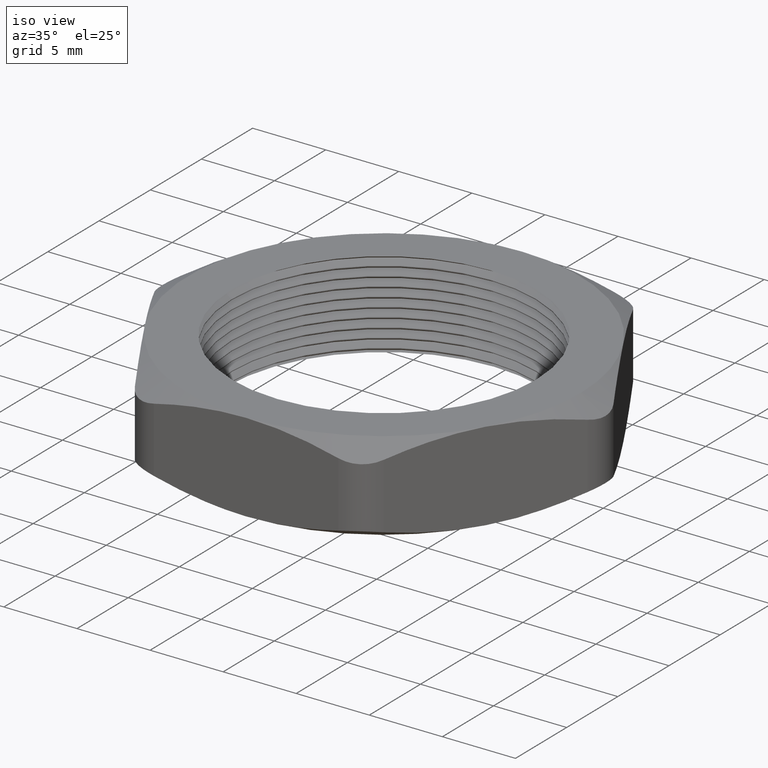
[diagram: clean part render]
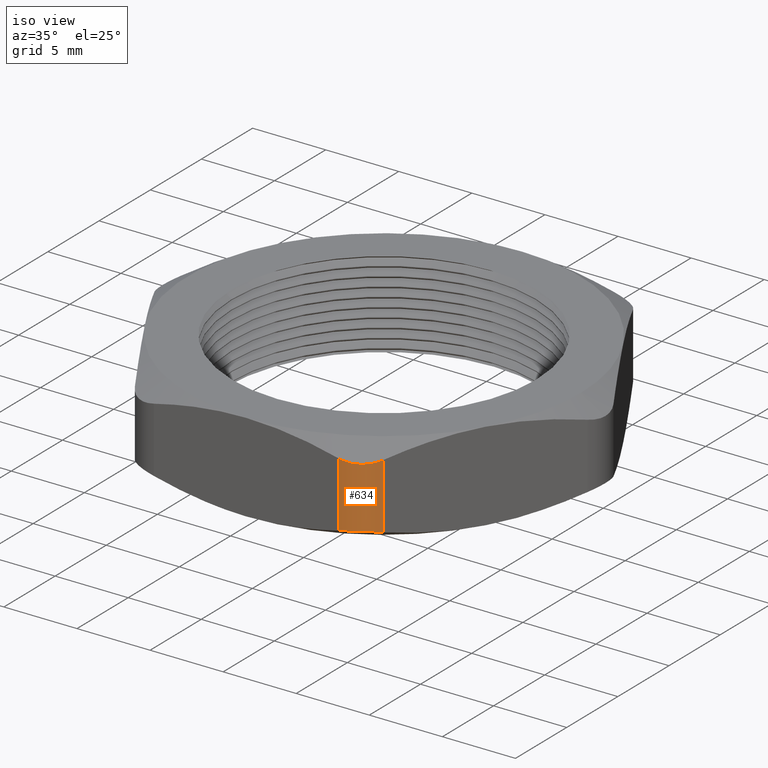
[diagram: same view with one face highlighted and labeled with its STEP entity id]
A machine part, iso view. The second image highlights one B-rep face of the part: STEP entity #634.
In plain terms, the highlighted cylindrical surface (partial cylindrical patch) has radius 2.54 mm, axis along (0, 0, -1).
Its self-contained STEP definition (entity closure, byte-faithful):
#456 = VERTEX_POINT ( 'NONE', #1757 ) ;
#458 = EDGE_CURVE ( 'NONE', #456, #459, #1756, .T. ) ;
#459 = VERTEX_POINT ( 'NONE', #1746 ) ;
#466 = EDGE_CURVE ( 'NONE', #471, #473, #1786, .T. ) ;
#471 = VERTEX_POINT ( 'NONE', #1772 ) ;
#473 = VERTEX_POINT ( 'NONE', #1771 ) ;
#537 = EDGE_CURVE ( 'NONE', #473, #456, #1903, .T. ) ;
#594 = EDGE_CURVE ( 'NONE', #459, #471, #2074, .T. ) ;
#613 = ORIENTED_EDGE ( 'NONE', *, *, #466, .F. ) ;
#614 = ORIENTED_EDGE ( 'NONE', *, *, #594, .F. ) ;
#615 = ORIENTED_EDGE ( 'NONE', *, *, #458, .F. ) ;
#634 = ADVANCED_FACE ( 'NONE', ( #2088 ), #2087, .T. ) ;
#635 = EDGE_LOOP ( 'NONE', ( #636, #613, #614, #615 ) ) ;
#636 = ORIENTED_EDGE ( 'NONE', *, *, #537, .F. ) ;
#1437 = CARTESIAN_POINT ( 'NONE',  ( 0.2654429589481258100, -0.5289011185036921500, 0.2043704327233682700 ) ) ;
#1444 = CARTESIAN_POINT ( 'NONE',  ( 0.3129031630985334400, -0.5067923633483560900, 0.2021571432969642100 ) ) ;
#1445 = CARTESIAN_POINT ( 'NONE',  ( 0.3057962390927460000, -0.5122600364598975900, 0.2015905404625066300 ) ) ;
#1448 = CARTESIAN_POINT ( 'NONE',  ( 0.2905843605529146400, -0.5210261620504398300, 0.2015973893732988500 ) ) ;
#1449 = CARTESIAN_POINT ( 'NONE',  ( 0.2823689258964634500, -0.5244102078064882800, 0.2021617336542236300 ) ) ;
#1685 = CARTESIAN_POINT ( 'NONE',  ( 0.3348631561299829600, -0.4799999999999998700, 0.2080936187378570100 ) ) ;
#1686 = CARTESIAN_POINT ( 'NONE',  ( 0.3305463269922462300, -0.4874769673941543000, 0.2059792017689854900 ) ) ;
#1688 = CARTESIAN_POINT ( 'NONE',  ( 0.3251960974889904200, -0.4944721462800847300, 0.2043413060484506900 ) ) ;
#1746 = CARTESIAN_POINT ( 'NONE',  ( 0.3348631561300047800, -0.4799999999999621200, 0.03190638126213233400 ) ) ;
#1747 = DIRECTION ( 'NONE',  ( 0.0000000000000000000, 0.0000000000000000000, -1.000000000000000000 ) ) ;
#1748 = VECTOR ( 'NONE', #1747, 39.37007874015748100 ) ;
#1749 = CARTESIAN_POINT ( 'NONE',  ( 0.3348631561299829600, -0.4799999999999998700, 0.2399999999999999900 ) ) ;
#1756 = LINE ( 'NONE', #1749, #1748 ) ;
#1757 = CARTESIAN_POINT ( 'NONE',  ( 0.3348631561299829600, -0.4799999999999998700, 0.2080936187378570100 ) ) ;
#1771 = CARTESIAN_POINT ( 'NONE',  ( 0.2482606157515391000, -0.5299999999999998000, 0.2080936187378570100 ) ) ;
#1772 = CARTESIAN_POINT ( 'NONE',  ( 0.2482606157515390400, -0.5299999999999998000, 0.03190638126214297800 ) ) ;
#1777 = DIRECTION ( 'NONE',  ( 0.0000000000000000000, 0.0000000000000000000, 1.000000000000000000 ) ) ;
#1778 = VECTOR ( 'NONE', #1777, 39.37007874015748100 ) ;
#1785 = CARTESIAN_POINT ( 'NONE',  ( 0.2482606157515391300, -0.5299999999999998000, 0.2399999999999999900 ) ) ;
#1786 = LINE ( 'NONE', #1785, #1778 ) ;
#1898 = CARTESIAN_POINT ( 'NONE',  ( 0.2568920763089042000, -0.5299999999999996900, 0.2059797399988198600 ) ) ;
#1899 = CARTESIAN_POINT ( 'NONE',  ( 0.2482606157515391000, -0.5299999999999998000, 0.2080936187378570100 ) ) ;
#1903 = B_SPLINE_CURVE_WITH_KNOTS ( 'NONE', 3,
 ( #1899, #1898, #1437, #1449, #1448, #1445, #1444, #1688, #1686, #1685 ),
 .UNSPECIFIED., .F., .F.,
 ( 4, 2, 2, 2, 4 ),
 ( 8.673617379884035500E-019, 0.0006680279323233906600, 0.001336055864646780400, 0.002004083796970172800, 0.002672111729293564800 ),
 .UNSPECIFIED. ) ;
#2062 = CARTESIAN_POINT ( 'NONE',  ( 0.2482606157515390400, -0.5299999999999998000, 0.03190638126214297800 ) ) ;
#2063 = CARTESIAN_POINT ( 'NONE',  ( 0.2568942740270184200, -0.5300000000000002500, 0.03402079823101582200 ) ) ;
#2064 = CARTESIAN_POINT ( 'NONE',  ( 0.2656273913978836100, -0.5288641547770676100, 0.03565869395155129400 ) ) ;
#2065 = CARTESIAN_POINT ( 'NONE',  ( 0.2824434795543833100, -0.5243782698420067500, 0.03784285670303777500 ) ) ;
#2066 = CARTESIAN_POINT ( 'NONE',  ( 0.2907320853714658300, -0.5209573296659957300, 0.03840945953749472900 ) ) ;
#2067 = CARTESIAN_POINT ( 'NONE',  ( 0.3059297120955614700, -0.5121665192064800400, 0.03840261062669975800 ) ) ;
#2068 = CARTESIAN_POINT ( 'NONE',  ( 0.3129680990160969000, -0.5067437669688794600, 0.03783826634577287800 ) ) ;
#2069 = CARTESIAN_POINT ( 'NONE',  ( 0.3253203252401704600, -0.4943309049565949900, 0.03562956727662359300 ) ) ;
#2070 = CARTESIAN_POINT ( 'NONE',  ( 0.3305474258513029800, -0.4874750641144368600, 0.03402026000090495300 ) ) ;
#2071 = CARTESIAN_POINT ( 'NONE',  ( 0.3348631561300047800, -0.4799999999999621200, 0.03190638126213233400 ) ) ;
#2074 = B_SPLINE_CURVE_WITH_KNOTS ( 'NONE', 3,
 ( #2071, #2070, #2069, #2068, #2067, #2066, #2065, #2064, #2063, #2062 ),
 .UNSPECIFIED., .F., .F.,
 ( 4, 2, 2, 2, 4 ),
 ( 7.896334560982826400E-017, 0.0006680279323234854200, 0.001336055864646891900, 0.002004083796970298600, 0.002672111729293704900 ),
 .UNSPECIFIED. ) ;
#2083 = DIRECTION ( 'NONE',  ( -1.000000000000000000, 0.0000000000000000000, 0.0000000000000000000 ) ) ;
#2084 = DIRECTION ( 'NONE',  ( 0.0000000000000000000, 0.0000000000000000000, -1.000000000000000000 ) ) ;
#2085 = AXIS2_PLACEMENT_3D ( 'NONE', #2092, #2084, #2083 ) ;
#2087 = CYLINDRICAL_SURFACE ( 'NONE', #2085, 0.1000000000000000100 ) ;
#2088 = FACE_OUTER_BOUND ( 'NONE', #635, .T. ) ;
#2092 = CARTESIAN_POINT ( 'NONE',  ( 0.2482606157515391000, -0.4299999999999997700, 0.2399999999999999900 ) ) ;